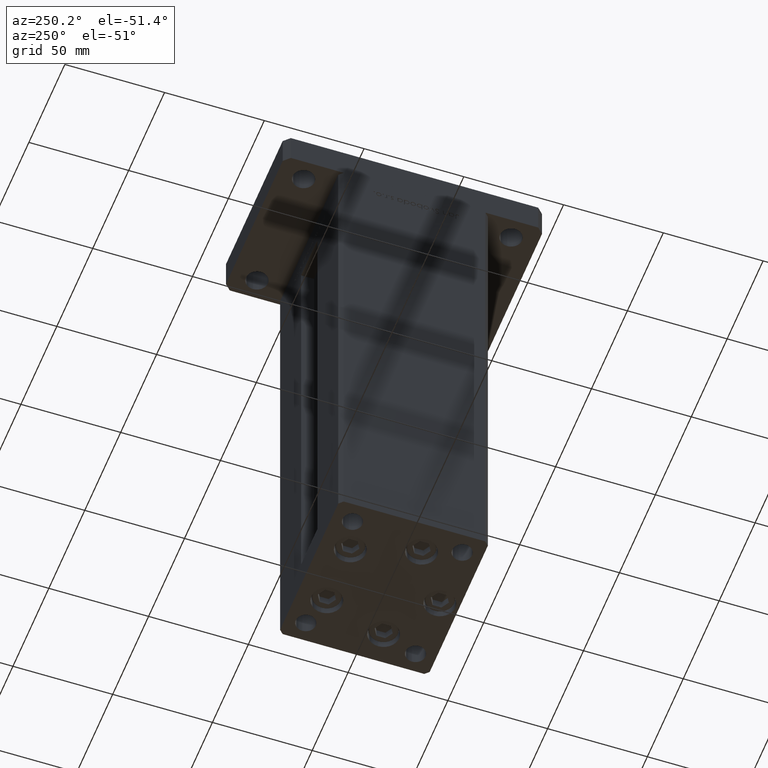
[diagram: clean part render]
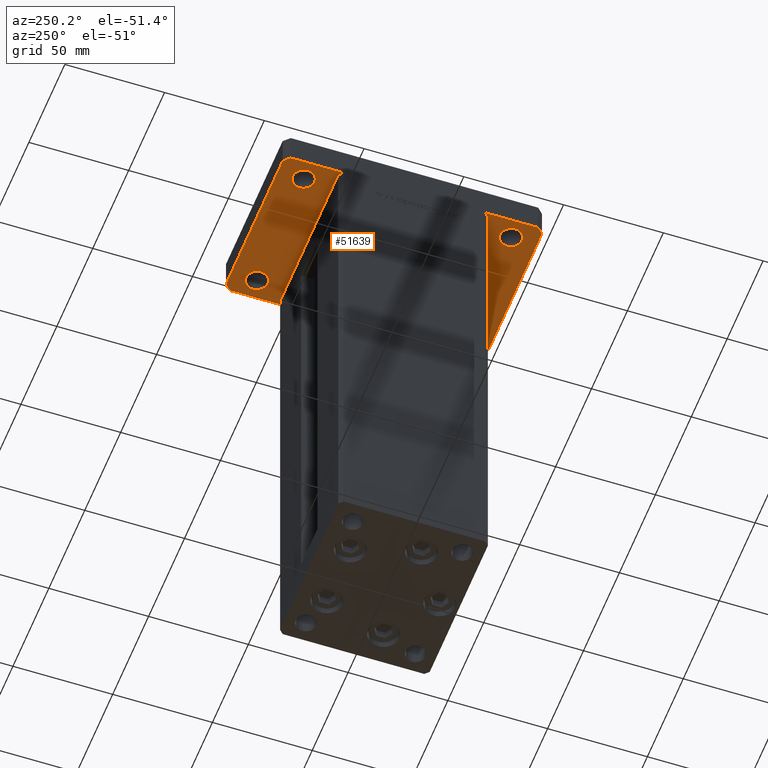
[diagram: same view with one face highlighted and labeled with its STEP entity id]
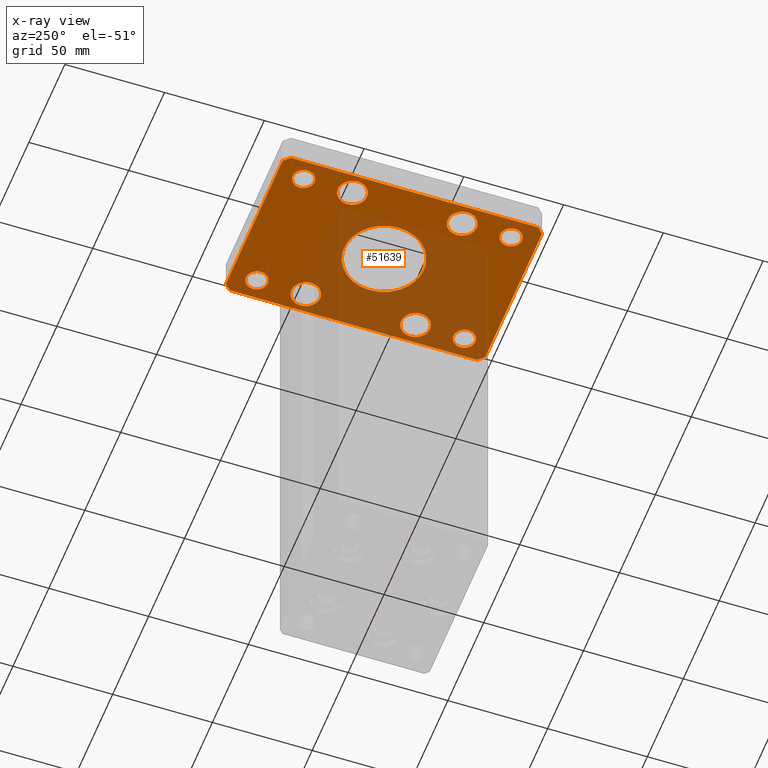
[diagram: x-ray of the same camera — body ghosted, the highlighted face saturated]
A machine part, auxiliary view. The second image highlights one B-rep face of the part: STEP entity #51639.
The next image is the same camera in x-ray: the body ghosted, the highlighted face saturated — about 44% of this face is hidden behind the body in this view.
In plain terms, the highlighted planar face has unit normal (0, 0, 1).
Its self-contained STEP definition (entity closure, byte-faithful):
#84 = FACE_BOUND ( 'NONE', #44474, .T. ) ;
#243 = EDGE_LOOP ( 'NONE', ( #44076, #39600 ) ) ;
#361 = PLANE ( 'NONE',  #25606 ) ;
#988 = DIRECTION ( 'NONE',  ( 0.000000000000000000, 0.000000000000000000, 1.000000000000000000 ) ) ;
#1098 = EDGE_CURVE ( 'NONE', #32597, #22268, #32752, .T. ) ;
#1106 = AXIS2_PLACEMENT_3D ( 'NONE', #37298, #44836, #54342 ) ;
#2114 = AXIS2_PLACEMENT_3D ( 'NONE', #12569, #16765, #8394 ) ;
#3109 = CARTESIAN_POINT ( 'NONE',  ( -32.50000000000000000, 52.00000000000000000, 0.000000000000000000 ) ) ;
#3253 = CARTESIAN_POINT ( 'NONE',  ( -32.50000000000000711, 27.50000000000000000, 0.000000000000000000 ) ) ;
#3484 = VERTEX_POINT ( 'NONE', #26440 ) ;
#4278 = FACE_BOUND ( 'NONE', #21866, .T. ) ;
#4439 = VERTEX_POINT ( 'NONE', #43952 ) ;
#4551 = CARTESIAN_POINT ( 'NONE',  ( 0.000000000000000000, 0.000000000000000000, 0.000000000000000000 ) ) ;
#4740 = VECTOR ( 'NONE', #48880, 1000.000000000000000 ) ;
#4772 = CARTESIAN_POINT ( 'NONE',  ( -39.75000000000000711, 27.50000000000000000, 0.000000000000000000 ) ) ;
#4870 = DIRECTION ( 'NONE',  ( 1.000000000000000000, 0.000000000000000000, 0.000000000000000000 ) ) ;
#5188 = VERTEX_POINT ( 'NONE', #37579 ) ;
#5700 = EDGE_CURVE ( 'NONE', #53554, #43135, #31101, .T. ) ;
#6049 = DIRECTION ( 'NONE',  ( 0.000000000000000000, 0.000000000000000000, 1.000000000000000000 ) ) ;
#6328 = ORIENTED_EDGE ( 'NONE', *, *, #47391, .T. ) ;
#6907 = DIRECTION ( 'NONE',  ( 0.000000000000000000, 0.000000000000000000, 1.000000000000000000 ) ) ;
#6988 = DIRECTION ( 'NONE',  ( 0.000000000000000000, 0.000000000000000000, 1.000000000000000000 ) ) ;
#7044 = CARTESIAN_POINT ( 'NONE',  ( -32.50000000000000000, 52.00000000000000000, 0.000000000000000000 ) ) ;
#7077 = CIRCLE ( 'NONE', #32939, 7.249999999999999112 ) ;
#7480 = LINE ( 'NONE', #36832, #27622 ) ;
#7996 = EDGE_CURVE ( 'NONE', #9421, #14299, #7480, .T. ) ;
#8118 = DIRECTION ( 'NONE',  ( 0.000000000000000000, 0.000000000000000000, 1.000000000000000000 ) ) ;
#8132 = EDGE_LOOP ( 'NONE', ( #40748, #8871 ) ) ;
#8394 = DIRECTION ( 'NONE',  ( 1.000000000000000000, 0.000000000000000000, 0.000000000000000000 ) ) ;
#8871 = ORIENTED_EDGE ( 'NONE', *, *, #41661, .F. ) ;
#9319 = CIRCLE ( 'NONE', #33430, 20.00000000000000000 ) ;
#9358 = DIRECTION ( 'NONE',  ( 1.000000000000000000, 0.000000000000000000, 0.000000000000000000 ) ) ;
#9421 = VERTEX_POINT ( 'NONE', #47090 ) ;
#9925 = EDGE_CURVE ( 'NONE', #43135, #53554, #31214, .T. ) ;
#9929 = CARTESIAN_POINT ( 'NONE',  ( 42.50000000000000000, 62.00000000000000711, 0.000000000000000000 ) ) ;
#10379 = AXIS2_PLACEMENT_3D ( 'NONE', #49086, #6049, #44607 ) ;
#10834 = CIRCLE ( 'NONE', #16195, 5.499999999999998224 ) ;
#11150 = CARTESIAN_POINT ( 'NONE',  ( 39.50000000000002842, 65.00000000000002842, 0.000000000000000000 ) ) ;
#11261 = VECTOR ( 'NONE', #16058, 1000.000000000000000 ) ;
#11475 = DIRECTION ( 'NONE',  ( 1.000000000000000000, 0.000000000000000000, 0.000000000000000000 ) ) ;
#11854 = LINE ( 'NONE', #28079, #11261 ) ;
#11931 = EDGE_CURVE ( 'NONE', #51073, #16031, #7077, .T. ) ;
#12569 = CARTESIAN_POINT ( 'NONE',  ( 32.49999999999997868, -52.00000000000000711, 0.000000000000000000 ) ) ;
#12575 = CARTESIAN_POINT ( 'NONE',  ( -42.49999999999999289, -62.00000000000001421, 0.000000000000000000 ) ) ;
#12795 = CIRCLE ( 'NONE', #37819, 7.249999999999999112 ) ;
#12902 = AXIS2_PLACEMENT_3D ( 'NONE', #13846, #52425, #44313 ) ;
#13081 = ORIENTED_EDGE ( 'NONE', *, *, #26387, .T. ) ;
#13846 = CARTESIAN_POINT ( 'NONE',  ( -32.50000000000000000, -27.50000000000000000, 0.000000000000000000 ) ) ;
#14299 = VERTEX_POINT ( 'NONE', #34787 ) ;
#14474 = CARTESIAN_POINT ( 'NONE',  ( -27.00000000000000711, 52.00000000000000000, 0.000000000000000000 ) ) ;
#14779 = LINE ( 'NONE', #23436, #4740 ) ;
#14858 = AXIS2_PLACEMENT_3D ( 'NONE', #35404, #31751, #52728 ) ;
#14870 = DIRECTION ( 'NONE',  ( 0.000000000000000000, 0.000000000000000000, -1.000000000000000000 ) ) ;
#15021 = DIRECTION ( 'NONE',  ( 1.000000000000000000, 0.000000000000000000, 0.000000000000000000 ) ) ;
#15352 = CARTESIAN_POINT ( 'NONE',  ( -32.50000000000000000, -27.50000000000000000, 0.000000000000000000 ) ) ;
#15393 = CARTESIAN_POINT ( 'NONE',  ( 32.49999999999997868, -52.00000000000000711, 0.000000000000000000 ) ) ;
#15577 = DIRECTION ( 'NONE',  ( 0.000000000000000000, 1.000000000000000000, 0.000000000000000000 ) ) ;
#15600 = ORIENTED_EDGE ( 'NONE', *, *, #9925, .T. ) ;
#15662 = VECTOR ( 'NONE', #16182, 1000.000000000000000 ) ;
#15813 = DIRECTION ( 'NONE',  ( 0.000000000000000000, 0.000000000000000000, 1.000000000000000000 ) ) ;
#15850 = CARTESIAN_POINT ( 'NONE',  ( -32.50000000000000711, 27.50000000000000000, 0.000000000000000000 ) ) ;
#15909 = DIRECTION ( 'NONE',  ( 0.000000000000000000, 0.000000000000000000, 1.000000000000000000 ) ) ;
#16011 = VERTEX_POINT ( 'NONE', #22626 ) ;
#16031 = VERTEX_POINT ( 'NONE', #4772 ) ;
#16058 = DIRECTION ( 'NONE',  ( -0.7071067811865417996, 0.7071067811865532349, 0.000000000000000000 ) ) ;
#16182 = DIRECTION ( 'NONE',  ( -1.000000000000000000, -3.513364001978340512E-16, 0.000000000000000000 ) ) ;
#16195 = AXIS2_PLACEMENT_3D ( 'NONE', #15393, #32166, #49222 ) ;
#16526 = DIRECTION ( 'NONE',  ( -1.000000000000000000, 0.000000000000000000, 0.000000000000000000 ) ) ;
#16647 = ORIENTED_EDGE ( 'NONE', *, *, #49965, .F. ) ;
#16765 = DIRECTION ( 'NONE',  ( 0.000000000000000000, 0.000000000000000000, 1.000000000000000000 ) ) ;
#16833 = FACE_BOUND ( 'NONE', #8132, .T. ) ;
#17089 = DIRECTION ( 'NONE',  ( 2.238352872228137677E-16, -1.000000000000000000, 0.000000000000000000 ) ) ;
#18286 = CARTESIAN_POINT ( 'NONE',  ( 32.50000000000000000, 51.99999999999999289, 0.000000000000000000 ) ) ;
#18771 = CARTESIAN_POINT ( 'NONE',  ( -42.50000000000002132, 62.00000000000000711, 0.000000000000000000 ) ) ;
#19057 = DIRECTION ( 'NONE',  ( 0.000000000000000000, 0.000000000000000000, 1.000000000000000000 ) ) ;
#19221 = ORIENTED_EDGE ( 'NONE', *, *, #52008, .T. ) ;
#19436 = CARTESIAN_POINT ( 'NONE',  ( 25.25000000000000000, 27.50000000000000000, 0.000000000000000000 ) ) ;
#19871 = EDGE_LOOP ( 'NONE', ( #19221, #52758 ) ) ;
#20644 = EDGE_CURVE ( 'NONE', #54196, #28755, #25207, .T. ) ;
#20650 = LINE ( 'NONE', #11150, #15662 ) ;
#21577 = FACE_BOUND ( 'NONE', #25649, .T. ) ;
#21672 = VERTEX_POINT ( 'NONE', #45522 ) ;
#21675 = VECTOR ( 'NONE', #35690, 1000.000000000000000 ) ;
#21771 = CIRCLE ( 'NONE', #33394, 7.249999999999999112 ) ;
#21866 = EDGE_LOOP ( 'NONE', ( #6328, #37962 ) ) ;
#21892 = EDGE_CURVE ( 'NONE', #16011, #35123, #36241, .T. ) ;
#21995 = CIRCLE ( 'NONE', #14858, 7.249999999999999112 ) ;
#22136 = ORIENTED_EDGE ( 'NONE', *, *, #32498, .T. ) ;
#22268 = VERTEX_POINT ( 'NONE', #40580 ) ;
#22444 = CARTESIAN_POINT ( 'NONE',  ( -32.49999999999997868, -52.00000000000000711, 0.000000000000000000 ) ) ;
#22522 = ORIENTED_EDGE ( 'NONE', *, *, #11931, .T. ) ;
#22626 = CARTESIAN_POINT ( 'NONE',  ( -39.50000000000003553, 65.00000000000000000, 0.000000000000000000 ) ) ;
#23000 = DIRECTION ( 'NONE',  ( 0.000000000000000000, 0.000000000000000000, 1.000000000000000000 ) ) ;
#23211 = CARTESIAN_POINT ( 'NONE',  ( 32.50000000000000000, 27.50000000000000000, 0.000000000000000000 ) ) ;
#23250 = CARTESIAN_POINT ( 'NONE',  ( 0.000000000000000000, 0.000000000000000000, 0.000000000000000000 ) ) ;
#23319 = ORIENTED_EDGE ( 'NONE', *, *, #48736, .F. ) ;
#23436 = CARTESIAN_POINT ( 'NONE',  ( -39.50000000000000000, -65.00000000000000000, 0.000000000000000000 ) ) ;
#23483 = VERTEX_POINT ( 'NONE', #19436 ) ;
#23660 = CARTESIAN_POINT ( 'NONE',  ( -39.50000000000003553, 65.00000000000000000, 0.000000000000000000 ) ) ;
#23803 = VERTEX_POINT ( 'NONE', #50329 ) ;
#23807 = CARTESIAN_POINT ( 'NONE',  ( -26.99999999999998579, -52.00000000000000711, 0.000000000000000000 ) ) ;
#24332 = EDGE_LOOP ( 'NONE', ( #29016, #37692, #46345, #49655, #23319, #16647, #51032, #37908 ) ) ;
#24574 = AXIS2_PLACEMENT_3D ( 'NONE', #15352, #15909, #41627 ) ;
#24689 = DIRECTION ( 'NONE',  ( 0.7071067811865483499, -0.7071067811865466846, 0.000000000000000000 ) ) ;
#25073 = EDGE_CURVE ( 'NONE', #3484, #9421, #14779, .T. ) ;
#25174 = DIRECTION ( 'NONE',  ( 1.000000000000000000, 0.000000000000000000, 0.000000000000000000 ) ) ;
#25207 = CIRCLE ( 'NONE', #1106, 5.499999999999994671 ) ;
#25606 = AXIS2_PLACEMENT_3D ( 'NONE', #4551, #51495, #30242 ) ;
#25649 = EDGE_LOOP ( 'NONE', ( #38529, #22522 ) ) ;
#25785 = FACE_BOUND ( 'NONE', #19871, .T. ) ;
#26141 = CARTESIAN_POINT ( 'NONE',  ( 37.99999999999997868, -52.00000000000000711, 0.000000000000000000 ) ) ;
#26387 = EDGE_CURVE ( 'NONE', #22268, #32597, #45825, .T. ) ;
#26440 = CARTESIAN_POINT ( 'NONE',  ( -39.50000000000000000, -65.00000000000000000, 0.000000000000000000 ) ) ;
#26463 = VERTEX_POINT ( 'NONE', #26141 ) ;
#26642 = AXIS2_PLACEMENT_3D ( 'NONE', #7044, #19057, #40595 ) ;
#26693 = EDGE_CURVE ( 'NONE', #35123, #51935, #29406, .T. ) ;
#26863 = CARTESIAN_POINT ( 'NONE',  ( 20.00000000000000000, 2.449293598294706513E-15, 0.000000000000000000 ) ) ;
#27226 = CIRCLE ( 'NONE', #28141, 7.249999999999999112 ) ;
#27622 = VECTOR ( 'NONE', #53874, 1000.000000000000114 ) ;
#27640 = EDGE_CURVE ( 'NONE', #21672, #26463, #29775, .T. ) ;
#28079 = CARTESIAN_POINT ( 'NONE',  ( 42.50000000000000000, 62.00000000000000711, 0.000000000000000000 ) ) ;
#28141 = AXIS2_PLACEMENT_3D ( 'NONE', #23211, #6988, #41092 ) ;
#28341 = VERTEX_POINT ( 'NONE', #50199 ) ;
#28755 = VERTEX_POINT ( 'NONE', #53351 ) ;
#28802 = DIRECTION ( 'NONE',  ( 0.000000000000000000, 0.000000000000000000, 1.000000000000000000 ) ) ;
#29016 = ORIENTED_EDGE ( 'NONE', *, *, #25073, .F. ) ;
#29032 = AXIS2_PLACEMENT_3D ( 'NONE', #22444, #23000, #4870 ) ;
#29406 = LINE ( 'NONE', #54578, #49364 ) ;
#29775 = CIRCLE ( 'NONE', #2114, 5.499999999999998224 ) ;
#29825 = EDGE_CURVE ( 'NONE', #4439, #41316, #44142, .T. ) ;
#30242 = DIRECTION ( 'NONE',  ( 1.000000000000000000, 0.000000000000000000, -0.000000000000000000 ) ) ;
#30820 = CIRCLE ( 'NONE', #29032, 5.499999999999994671 ) ;
#30922 = EDGE_LOOP ( 'NONE', ( #49097, #39606 ) ) ;
#31101 = CIRCLE ( 'NONE', #26642, 5.499999999999994671 ) ;
#31214 = CIRCLE ( 'NONE', #37511, 5.499999999999994671 ) ;
#31308 = VECTOR ( 'NONE', #24689, 1000.000000000000000 ) ;
#31456 = VECTOR ( 'NONE', #15577, 1000.000000000000000 ) ;
#31751 = DIRECTION ( 'NONE',  ( 0.000000000000000000, 0.000000000000000000, 1.000000000000000000 ) ) ;
#32048 = EDGE_CURVE ( 'NONE', #51935, #3484, #41738, .T. ) ;
#32166 = DIRECTION ( 'NONE',  ( 0.000000000000000000, 0.000000000000000000, 1.000000000000000000 ) ) ;
#32452 = VERTEX_POINT ( 'NONE', #26863 ) ;
#32498 = EDGE_CURVE ( 'NONE', #26463, #21672, #10834, .T. ) ;
#32597 = VERTEX_POINT ( 'NONE', #53963 ) ;
#32752 = CIRCLE ( 'NONE', #39877, 5.499999999999991118 ) ;
#32939 = AXIS2_PLACEMENT_3D ( 'NONE', #15850, #6907, #15021 ) ;
#33394 = AXIS2_PLACEMENT_3D ( 'NONE', #3253, #15813, #45159 ) ;
#33430 = AXIS2_PLACEMENT_3D ( 'NONE', #38056, #46169, #16526 ) ;
#33563 = DIRECTION ( 'NONE',  ( 1.000000000000000000, 0.000000000000000000, 0.000000000000000000 ) ) ;
#34379 = CIRCLE ( 'NONE', #24574, 7.249999999999999112 ) ;
#34787 = CARTESIAN_POINT ( 'NONE',  ( 42.50000000000000000, -61.99999999999988631, 0.000000000000000000 ) ) ;
#35123 = VERTEX_POINT ( 'NONE', #18771 ) ;
#35404 = CARTESIAN_POINT ( 'NONE',  ( 32.50000000000000000, -27.50000000000000000, 0.000000000000000000 ) ) ;
#35670 = CARTESIAN_POINT ( 'NONE',  ( -25.25000000000000711, 27.50000000000000000, 0.000000000000000000 ) ) ;
#35690 = DIRECTION ( 'NONE',  ( -0.7071067811865466846, -0.7071067811865483499, 0.000000000000000000 ) ) ;
#36241 = LINE ( 'NONE', #23660, #21675 ) ;
#36736 = EDGE_CURVE ( 'NONE', #14299, #50679, #53864, .T. ) ;
#36797 = ORIENTED_EDGE ( 'NONE', *, *, #1098, .T. ) ;
#36832 = CARTESIAN_POINT ( 'NONE',  ( 39.50000000000001421, -64.99999999999988631, 0.000000000000000000 ) ) ;
#36901 = ORIENTED_EDGE ( 'NONE', *, *, #5700, .T. ) ;
#37298 = CARTESIAN_POINT ( 'NONE',  ( -32.49999999999997868, -52.00000000000000711, 0.000000000000000000 ) ) ;
#37385 = CARTESIAN_POINT ( 'NONE',  ( 42.50000000000000000, -61.99999999999988631, 0.000000000000000000 ) ) ;
#37511 = AXIS2_PLACEMENT_3D ( 'NONE', #3109, #28802, #11475 ) ;
#37579 = CARTESIAN_POINT ( 'NONE',  ( 39.75000000000000000, -27.50000000000000000, 0.000000000000000000 ) ) ;
#37692 = ORIENTED_EDGE ( 'NONE', *, *, #32048, .F. ) ;
#37819 = AXIS2_PLACEMENT_3D ( 'NONE', #45863, #38027, #25174 ) ;
#37908 = ORIENTED_EDGE ( 'NONE', *, *, #7996, .F. ) ;
#37962 = ORIENTED_EDGE ( 'NONE', *, *, #20644, .T. ) ;
#38027 = DIRECTION ( 'NONE',  ( 0.000000000000000000, 0.000000000000000000, 1.000000000000000000 ) ) ;
#38056 = CARTESIAN_POINT ( 'NONE',  ( 0.000000000000000000, 0.000000000000000000, 0.000000000000000000 ) ) ;
#38367 = FACE_BOUND ( 'NONE', #45962, .T. ) ;
#38529 = ORIENTED_EDGE ( 'NONE', *, *, #40009, .T. ) ;
#39519 = EDGE_CURVE ( 'NONE', #44082, #5188, #12795, .T. ) ;
#39600 = ORIENTED_EDGE ( 'NONE', *, *, #48319, .T. ) ;
#39606 = ORIENTED_EDGE ( 'NONE', *, *, #51975, .T. ) ;
#39877 = AXIS2_PLACEMENT_3D ( 'NONE', #42500, #8118, #33563 ) ;
#40009 = EDGE_CURVE ( 'NONE', #16031, #51073, #21771, .T. ) ;
#40580 = CARTESIAN_POINT ( 'NONE',  ( 27.00000000000001421, 51.99999999999999289, 0.000000000000000000 ) ) ;
#40595 = DIRECTION ( 'NONE',  ( 1.000000000000000000, 0.000000000000000000, 0.000000000000000000 ) ) ;
#40748 = ORIENTED_EDGE ( 'NONE', *, *, #53225, .F. ) ;
#41092 = DIRECTION ( 'NONE',  ( 1.000000000000000000, 0.000000000000000000, 0.000000000000000000 ) ) ;
#41316 = VERTEX_POINT ( 'NONE', #45674 ) ;
#41460 = CARTESIAN_POINT ( 'NONE',  ( -42.49999999999999289, -62.00000000000001421, 0.000000000000000000 ) ) ;
#41627 = DIRECTION ( 'NONE',  ( 1.000000000000000000, 0.000000000000000000, 0.000000000000000000 ) ) ;
#41661 = EDGE_CURVE ( 'NONE', #32452, #52795, #9319, .T. ) ;
#41685 = AXIS2_PLACEMENT_3D ( 'NONE', #23250, #14870, #52061 ) ;
#41738 = LINE ( 'NONE', #41460, #31308 ) ;
#41743 = ORIENTED_EDGE ( 'NONE', *, *, #27640, .T. ) ;
#42500 = CARTESIAN_POINT ( 'NONE',  ( 32.50000000000000000, 51.99999999999999289, 0.000000000000000000 ) ) ;
#42562 = FACE_OUTER_BOUND ( 'NONE', #24332, .T. ) ;
#42841 = FACE_BOUND ( 'NONE', #50952, .T. ) ;
#43135 = VERTEX_POINT ( 'NONE', #14474 ) ;
#43952 = CARTESIAN_POINT ( 'NONE',  ( -39.75000000000000000, -27.50000000000000000, 0.000000000000000000 ) ) ;
#44076 = ORIENTED_EDGE ( 'NONE', *, *, #29825, .T. ) ;
#44082 = VERTEX_POINT ( 'NONE', #47135 ) ;
#44142 = CIRCLE ( 'NONE', #12902, 7.249999999999999112 ) ;
#44313 = DIRECTION ( 'NONE',  ( 1.000000000000000000, 0.000000000000000000, 0.000000000000000000 ) ) ;
#44474 = EDGE_LOOP ( 'NONE', ( #36901, #15600 ) ) ;
#44607 = DIRECTION ( 'NONE',  ( 1.000000000000000000, 0.000000000000000000, 0.000000000000000000 ) ) ;
#44836 = DIRECTION ( 'NONE',  ( 0.000000000000000000, 0.000000000000000000, 1.000000000000000000 ) ) ;
#45159 = DIRECTION ( 'NONE',  ( 1.000000000000000000, 0.000000000000000000, 0.000000000000000000 ) ) ;
#45522 = CARTESIAN_POINT ( 'NONE',  ( 26.99999999999998579, -52.00000000000000711, 0.000000000000000000 ) ) ;
#45674 = CARTESIAN_POINT ( 'NONE',  ( -25.25000000000000000, -27.50000000000000000, 0.000000000000000000 ) ) ;
#45784 = CARTESIAN_POINT ( 'NONE',  ( -38.00000000000000000, 52.00000000000000000, 0.000000000000000000 ) ) ;
#45825 = CIRCLE ( 'NONE', #52953, 5.499999999999991118 ) ;
#45863 = CARTESIAN_POINT ( 'NONE',  ( 32.50000000000000000, -27.50000000000000000, 0.000000000000000000 ) ) ;
#45962 = EDGE_LOOP ( 'NONE', ( #13081, #36797 ) ) ;
#46169 = DIRECTION ( 'NONE',  ( 0.000000000000000000, 0.000000000000000000, -1.000000000000000000 ) ) ;
#46345 = ORIENTED_EDGE ( 'NONE', *, *, #26693, .F. ) ;
#46991 = CIRCLE ( 'NONE', #10379, 7.249999999999999112 ) ;
#47027 = FACE_BOUND ( 'NONE', #30922, .T. ) ;
#47090 = CARTESIAN_POINT ( 'NONE',  ( 39.50000000000001421, -64.99999999999988631, 0.000000000000000000 ) ) ;
#47135 = CARTESIAN_POINT ( 'NONE',  ( 25.25000000000000000, -27.50000000000000000, 0.000000000000000000 ) ) ;
#47391 = EDGE_CURVE ( 'NONE', #28755, #54196, #30820, .T. ) ;
#47810 = EDGE_CURVE ( 'NONE', #23803, #23483, #27226, .T. ) ;
#48319 = EDGE_CURVE ( 'NONE', #41316, #4439, #34379, .T. ) ;
#48736 = EDGE_CURVE ( 'NONE', #28341, #16011, #20650, .T. ) ;
#48880 = DIRECTION ( 'NONE',  ( 1.000000000000000000, 1.405345600791337191E-15, 0.000000000000000000 ) ) ;
#49086 = CARTESIAN_POINT ( 'NONE',  ( 32.50000000000000000, 27.50000000000000000, 0.000000000000000000 ) ) ;
#49097 = ORIENTED_EDGE ( 'NONE', *, *, #39519, .T. ) ;
#49170 = CARTESIAN_POINT ( 'NONE',  ( -20.00000000000000000, 0.000000000000000000, 0.000000000000000000 ) ) ;
#49222 = DIRECTION ( 'NONE',  ( 1.000000000000000000, 0.000000000000000000, 0.000000000000000000 ) ) ;
#49364 = VECTOR ( 'NONE', #17089, 1000.000000000000000 ) ;
#49655 = ORIENTED_EDGE ( 'NONE', *, *, #21892, .F. ) ;
#49965 = EDGE_CURVE ( 'NONE', #50679, #28341, #11854, .T. ) ;
#50199 = CARTESIAN_POINT ( 'NONE',  ( 39.50000000000002842, 65.00000000000002842, 0.000000000000000000 ) ) ;
#50329 = CARTESIAN_POINT ( 'NONE',  ( 39.75000000000000000, 27.50000000000000000, 0.000000000000000000 ) ) ;
#50679 = VERTEX_POINT ( 'NONE', #9929 ) ;
#50952 = EDGE_LOOP ( 'NONE', ( #41743, #22136 ) ) ;
#51032 = ORIENTED_EDGE ( 'NONE', *, *, #36736, .F. ) ;
#51073 = VERTEX_POINT ( 'NONE', #35670 ) ;
#51223 = FACE_BOUND ( 'NONE', #243, .T. ) ;
#51495 = DIRECTION ( 'NONE',  ( 0.000000000000000000, 0.000000000000000000, 1.000000000000000000 ) ) ;
#51639 = ADVANCED_FACE ( 'NONE', ( #16833, #42562, #4278, #38367, #84, #51223, #47027, #25785, #21577, #42841 ), #361, .F. ) ;
#51935 = VERTEX_POINT ( 'NONE', #12575 ) ;
#51975 = EDGE_CURVE ( 'NONE', #5188, #44082, #21995, .T. ) ;
#52008 = EDGE_CURVE ( 'NONE', #23483, #23803, #46991, .T. ) ;
#52061 = DIRECTION ( 'NONE',  ( -1.000000000000000000, 0.000000000000000000, 0.000000000000000000 ) ) ;
#52404 = CIRCLE ( 'NONE', #41685, 20.00000000000000000 ) ;
#52425 = DIRECTION ( 'NONE',  ( 0.000000000000000000, 0.000000000000000000, 1.000000000000000000 ) ) ;
#52728 = DIRECTION ( 'NONE',  ( 1.000000000000000000, 0.000000000000000000, 0.000000000000000000 ) ) ;
#52758 = ORIENTED_EDGE ( 'NONE', *, *, #47810, .T. ) ;
#52795 = VERTEX_POINT ( 'NONE', #49170 ) ;
#52953 = AXIS2_PLACEMENT_3D ( 'NONE', #18286, #988, #9358 ) ;
#53225 = EDGE_CURVE ( 'NONE', #52795, #32452, #52404, .T. ) ;
#53351 = CARTESIAN_POINT ( 'NONE',  ( -37.99999999999997868, -52.00000000000000711, 0.000000000000000000 ) ) ;
#53554 = VERTEX_POINT ( 'NONE', #45784 ) ;
#53864 = LINE ( 'NONE', #37385, #31456 ) ;
#53874 = DIRECTION ( 'NONE',  ( 0.7071067811865459074, 0.7071067811865491270, 0.000000000000000000 ) ) ;
#53963 = CARTESIAN_POINT ( 'NONE',  ( 37.99999999999999289, 51.99999999999999289, 0.000000000000000000 ) ) ;
#54196 = VERTEX_POINT ( 'NONE', #23807 ) ;
#54342 = DIRECTION ( 'NONE',  ( 1.000000000000000000, 0.000000000000000000, 0.000000000000000000 ) ) ;
#54578 = CARTESIAN_POINT ( 'NONE',  ( -42.50000000000002132, 62.00000000000000711, 0.000000000000000000 ) ) ;